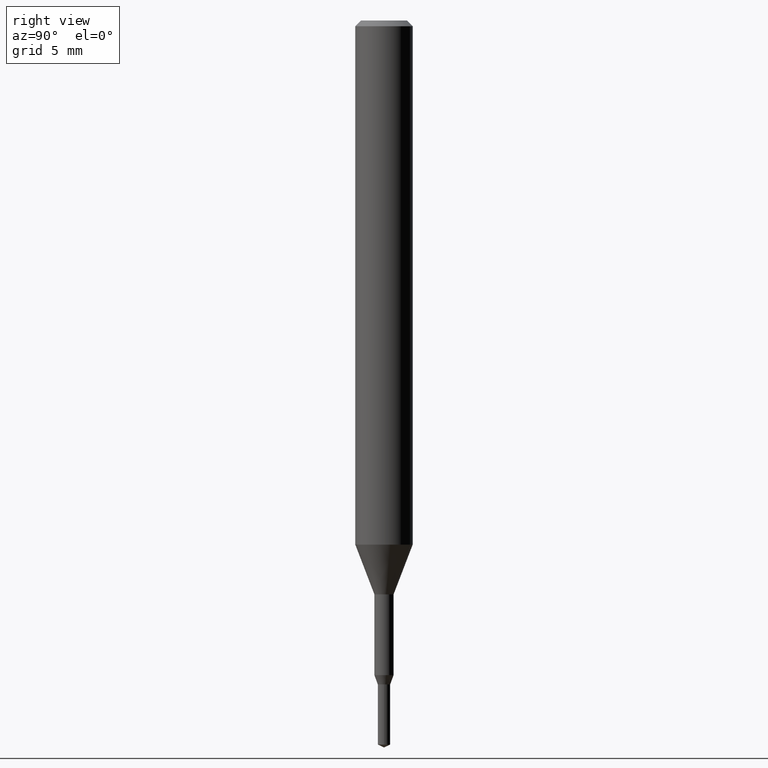
[diagram: clean part render]
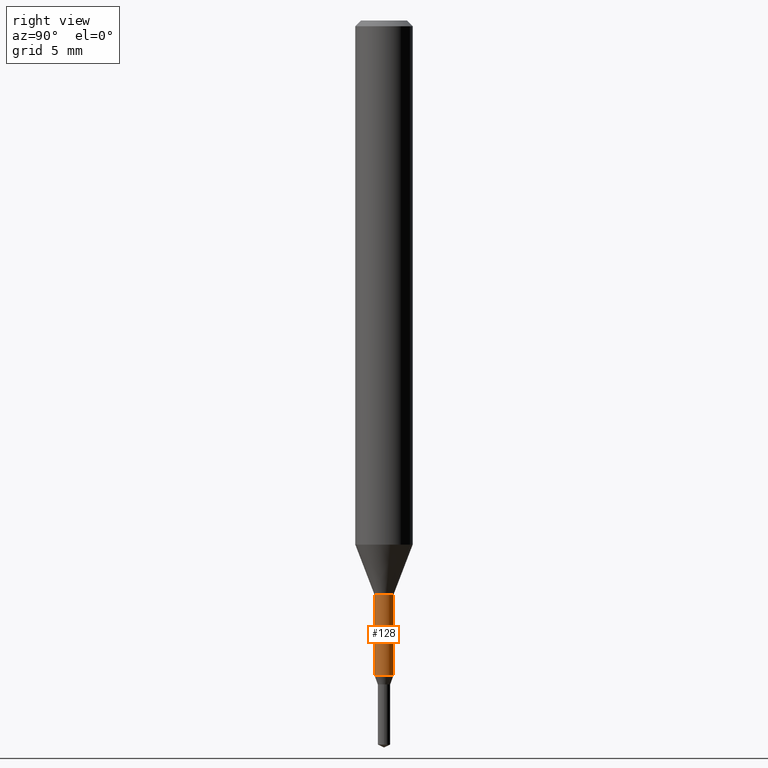
[diagram: same view with one face highlighted and labeled with its STEP entity id]
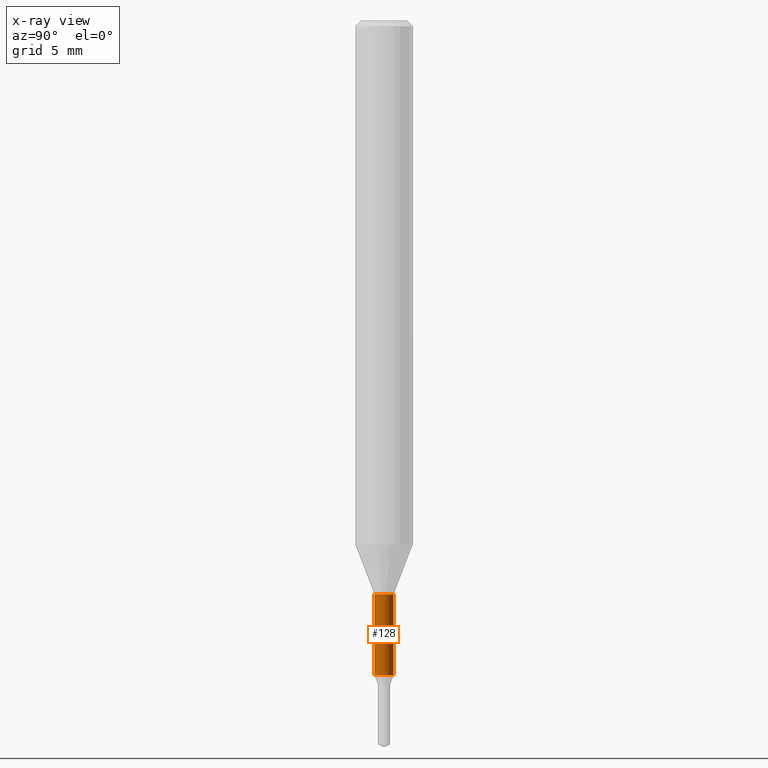
[diagram: x-ray of the same camera — body ghosted, the highlighted face saturated]
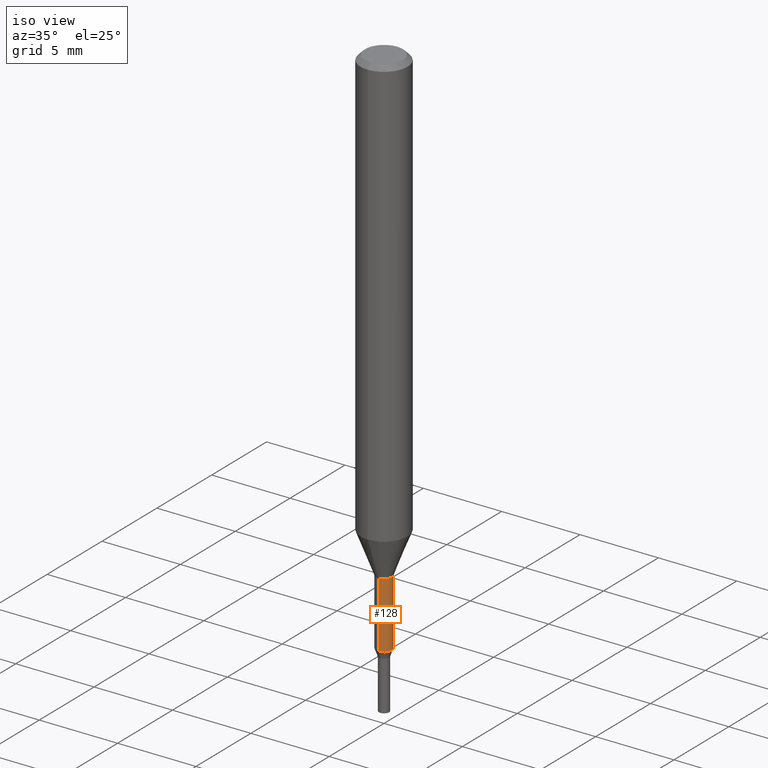
[diagram: same view with one face highlighted and labeled with its STEP entity id]
A machine part, right view. The second image highlights one B-rep face of the part: STEP entity #128.
The next image is the same camera in x-ray: the body ghosted, the highlighted face saturated — about 0% of this face is hidden behind the body in this view.
A second angle (iso view) of the same face is appended — the face is thin or edge-on in the first view.
In plain terms, the highlighted cylindrical surface (edge-blend (fillet) strip) has radius 0.5 mm, axis along (-0, -0, 1).
Its self-contained STEP definition (entity closure, byte-faithful):
#112=EDGE_CURVE('',#236,#268,#289,.T.);
#128=ADVANCED_FACE('',(#308),#309,.T.);
#144=EDGE_CURVE('',#202,#256,#325,.T.);
#146=EDGE_CURVE('',#268,#256,#327,.T.);
#202=VERTEX_POINT('',#390);
#214=EDGE_CURVE('',#202,#236,#405,.T.);
#236=VERTEX_POINT('',#429);
#256=VERTEX_POINT('',#452);
#268=VERTEX_POINT('',#466);
#289=CIRCLE('',#480,0.49995);
#308=FACE_OUTER_BOUND('',#503,.T.);
#309=CYLINDRICAL_SURFACE('',#504,0.49995);
#325=CIRCLE('',#523,0.49995);
#327=LINE('',#526,#527);
#390=CARTESIAN_POINT('',(0.0,0.49995,-30.0));
#405=LINE('',#626,#627);
#429=CARTESIAN_POINT('',(0.0,0.49995,-34.219));
#452=CARTESIAN_POINT('',(6.12241946593498E-017,-0.49995,-30.0));
#466=CARTESIAN_POINT('',(6.12241946593498E-017,-0.49995,-34.219));
#480=AXIS2_PLACEMENT_3D('',#708,#709,#710);
#503=EDGE_LOOP('',(#735,#736,#737,#738));
#504=AXIS2_PLACEMENT_3D('',#739,#740,#741);
#523=AXIS2_PLACEMENT_3D('',#747,#748,#749);
#526=CARTESIAN_POINT('',(6.12241946593498E-017,-0.49995,-32.1095));
#527=VECTOR('',#750,1.0);
#626=CARTESIAN_POINT('',(-6.12241946593498E-017,0.49995,-32.1095));
#627=VECTOR('',#867,1.0);
#708=CARTESIAN_POINT('',(0.0,0.0,-34.219));
#709=DIRECTION('',(0.0,0.0,-1.0));
#710=DIRECTION('',(0.0,1.0,0.0));
#735=ORIENTED_EDGE('',*,*,#214,.F.);
#736=ORIENTED_EDGE('',*,*,#144,.T.);
#737=ORIENTED_EDGE('',*,*,#146,.F.);
#738=ORIENTED_EDGE('',*,*,#112,.F.);
#739=CARTESIAN_POINT('',(0.0,0.0,-32.1095));
#740=DIRECTION('',(-0.0,-0.0,1.0));
#741=DIRECTION('',(0.0,1.0,0.0));
#747=CARTESIAN_POINT('',(0.0,0.0,-30.0));
#748=DIRECTION('',(0.0,0.0,-1.0));
#749=DIRECTION('',(0.0,1.0,0.0));
#750=DIRECTION('',(-0.0,-0.0,1.0));
#867=DIRECTION('',(0.0,0.0,-1.0));